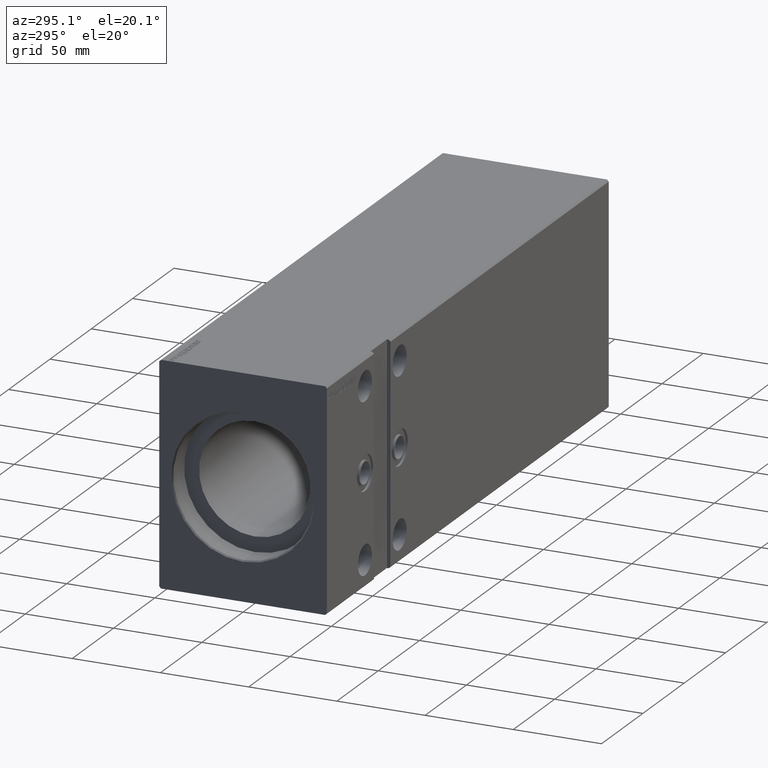
[diagram: clean part render]
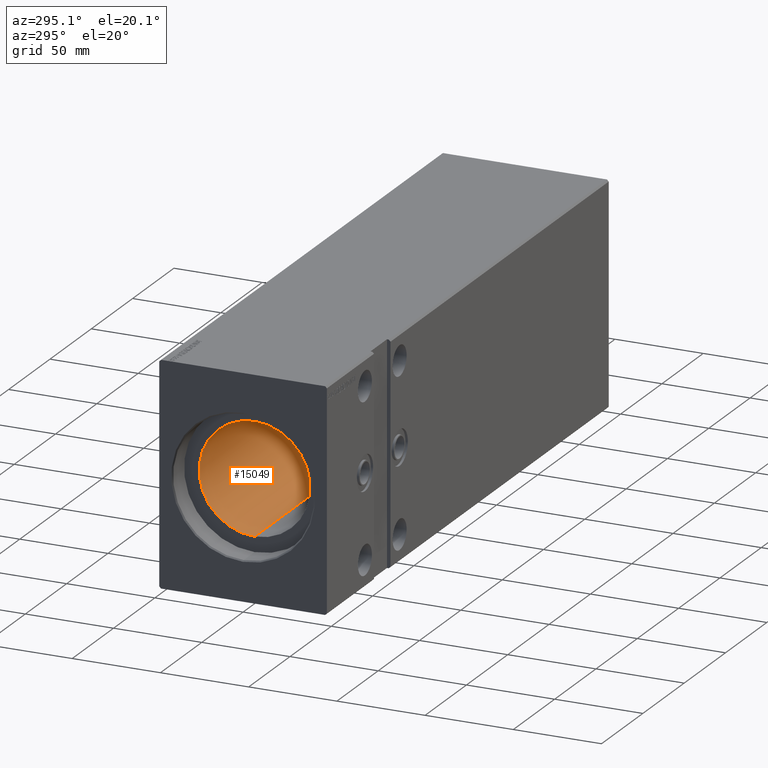
[diagram: same view with one face highlighted and labeled with its STEP entity id]
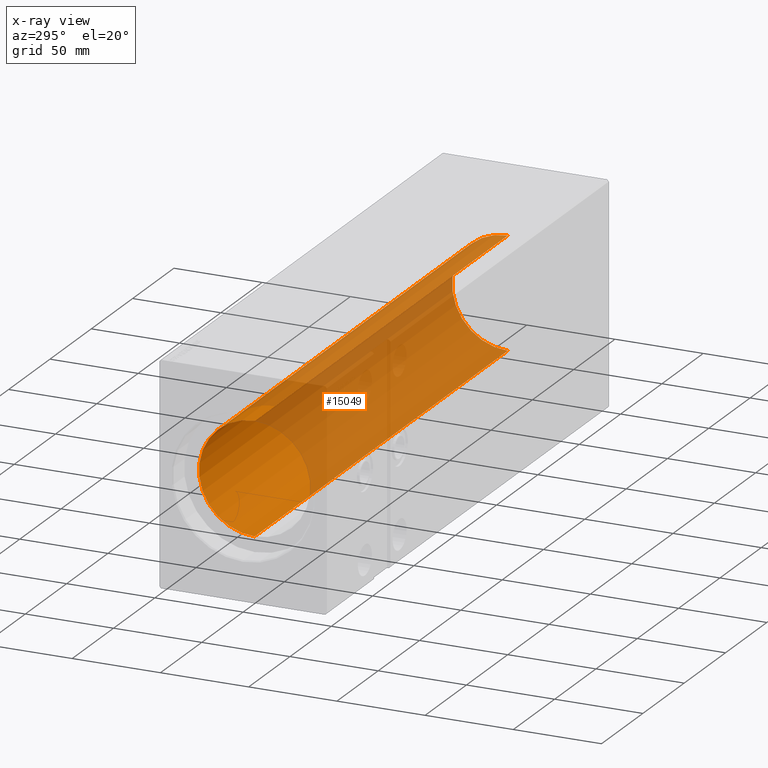
[diagram: x-ray of the same camera — body ghosted, the highlighted face saturated]
A machine part, auxiliary view. The second image highlights one B-rep face of the part: STEP entity #15049.
The next image is the same camera in x-ray: the body ghosted, the highlighted face saturated — about 72% of this face is hidden behind the body in this view.
In plain terms, the highlighted cylindrical surface (partial cylindrical patch) has radius 31.5 mm, axis along (-1, -0, -0).
Its self-contained STEP definition (entity closure, byte-faithful):
#2030 = EDGE_LOOP ( 'NONE', ( #27657, #9240, #30767, #28740 ) ) ;
#4018 = VERTEX_POINT ( 'NONE', #41315 ) ;
#4094 = AXIS2_PLACEMENT_3D ( 'NONE', #32442, #29254, #13079 ) ;
#4510 = DIRECTION ( 'NONE',  ( 0.000000000000000000, 0.000000000000000000, 1.000000000000000000 ) ) ;
#6416 = CYLINDRICAL_SURFACE ( 'NONE', #41104, 31.50000000000000000 ) ;
#8354 = CARTESIAN_POINT ( 'NONE',  ( 14.00000000000001243, 3.857637417314162689E-15, -31.50000000000000000 ) ) ;
#9240 = ORIENTED_EDGE ( 'NONE', *, *, #31021, .F. ) ;
#11285 = DIRECTION ( 'NONE',  ( -1.000000000000000000, 0.000000000000000000, 0.000000000000000000 ) ) ;
#13079 = DIRECTION ( 'NONE',  ( 0.000000000000000000, 0.000000000000000000, 1.000000000000000000 ) ) ;
#15049 = ADVANCED_FACE ( 'NONE', ( #29368 ), #6416, .F. ) ;
#15679 = DIRECTION ( 'NONE',  ( -1.000000000000000000, -0.000000000000000000, -0.000000000000000000 ) ) ;
#16928 = CARTESIAN_POINT ( 'NONE',  ( 320.1999999999999886, 0.000000000000000000, 31.50000000000000000 ) ) ;
#17428 = CARTESIAN_POINT ( 'NONE',  ( 320.1999999999999886, 3.857637417314162689E-15, -31.50000000000000000 ) ) ;
#17586 = VERTEX_POINT ( 'NONE', #8354 ) ;
#19373 = DIRECTION ( 'NONE',  ( -1.000000000000000000, -0.000000000000000000, -0.000000000000000000 ) ) ;
#19645 = VECTOR ( 'NONE', #40806, 1000.000000000000000 ) ;
#20650 = CARTESIAN_POINT ( 'NONE',  ( 14.00000000000001243, 0.000000000000000000, 0.000000000000000000 ) ) ;
#23604 = VECTOR ( 'NONE', #15679, 1000.000000000000000 ) ;
#24241 = EDGE_CURVE ( 'NONE', #24468, #31667, #35242, .T. ) ;
#24468 = VERTEX_POINT ( 'NONE', #16928 ) ;
#25243 = CARTESIAN_POINT ( 'NONE',  ( 320.1999999999999886, 0.000000000000000000, 31.50000000000000000 ) ) ;
#27657 = ORIENTED_EDGE ( 'NONE', *, *, #30474, .F. ) ;
#27848 = CIRCLE ( 'NONE', #38689, 31.50000000000000000 ) ;
#28022 = EDGE_CURVE ( 'NONE', #31667, #17586, #27848, .T. ) ;
#28740 = ORIENTED_EDGE ( 'NONE', *, *, #28022, .T. ) ;
#28950 = CARTESIAN_POINT ( 'NONE',  ( 320.1999999999999886, 0.000000000000000000, 0.000000000000000000 ) ) ;
#29254 = DIRECTION ( 'NONE',  ( -1.000000000000000000, 0.000000000000000000, 0.000000000000000000 ) ) ;
#29368 = FACE_OUTER_BOUND ( 'NONE', #2030, .T. ) ;
#30474 = EDGE_CURVE ( 'NONE', #4018, #17586, #33595, .T. ) ;
#30767 = ORIENTED_EDGE ( 'NONE', *, *, #24241, .T. ) ;
#31021 = EDGE_CURVE ( 'NONE', #24468, #4018, #35950, .T. ) ;
#31667 = VERTEX_POINT ( 'NONE', #39661 ) ;
#32349 = DIRECTION ( 'NONE',  ( 0.000000000000000000, 0.000000000000000000, 1.000000000000000000 ) ) ;
#32442 = CARTESIAN_POINT ( 'NONE',  ( 320.1999999999999886, 0.000000000000000000, 0.000000000000000000 ) ) ;
#33595 = LINE ( 'NONE', #17428, #19645 ) ;
#35242 = LINE ( 'NONE', #25243, #23604 ) ;
#35950 = CIRCLE ( 'NONE', #4094, 31.50000000000000000 ) ;
#38689 = AXIS2_PLACEMENT_3D ( 'NONE', #20650, #11285, #4510 ) ;
#39661 = CARTESIAN_POINT ( 'NONE',  ( 14.00000000000001243, 0.000000000000000000, 31.50000000000000000 ) ) ;
#40806 = DIRECTION ( 'NONE',  ( -1.000000000000000000, -0.000000000000000000, -0.000000000000000000 ) ) ;
#41104 = AXIS2_PLACEMENT_3D ( 'NONE', #28950, #19373, #32349 ) ;
#41315 = CARTESIAN_POINT ( 'NONE',  ( 320.1999999999999886, 3.857637417314162689E-15, -31.50000000000000000 ) ) ;